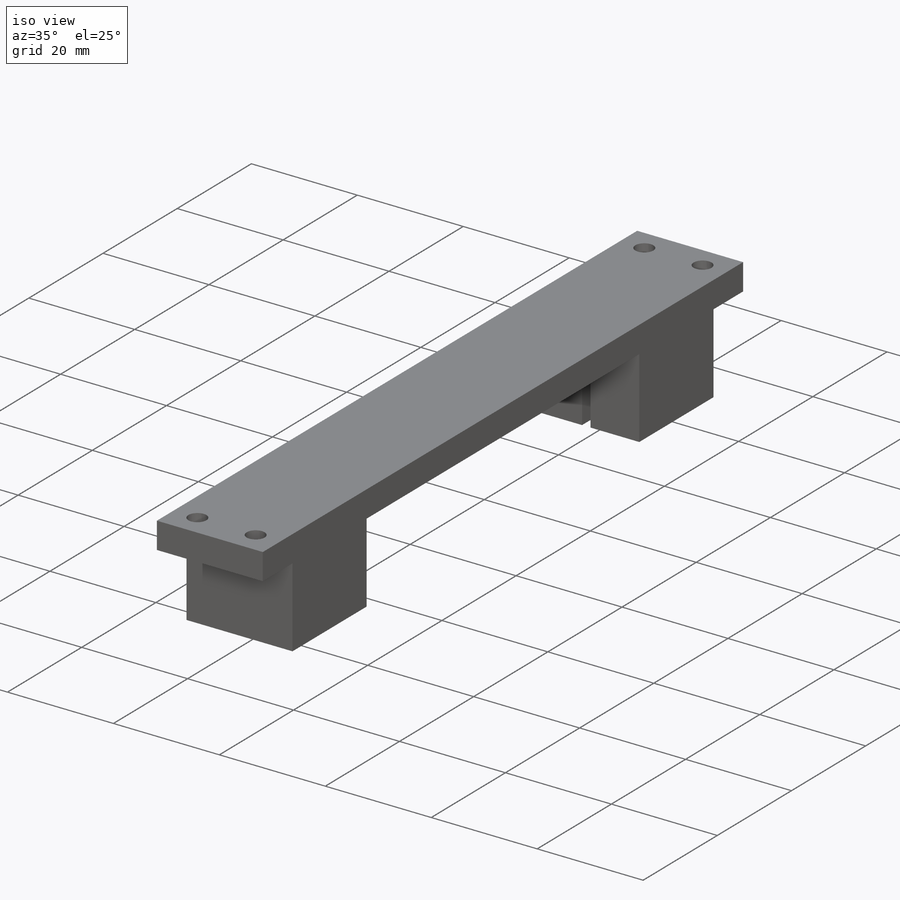
[diagram: iso view]
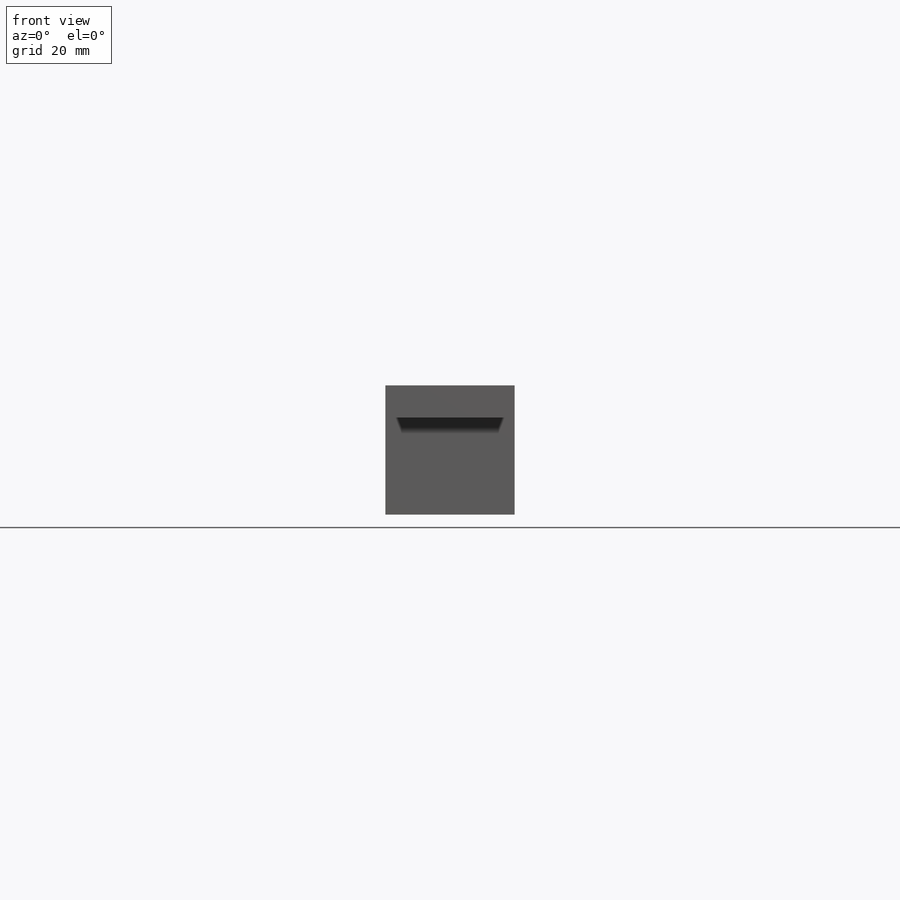
[diagram: front view]
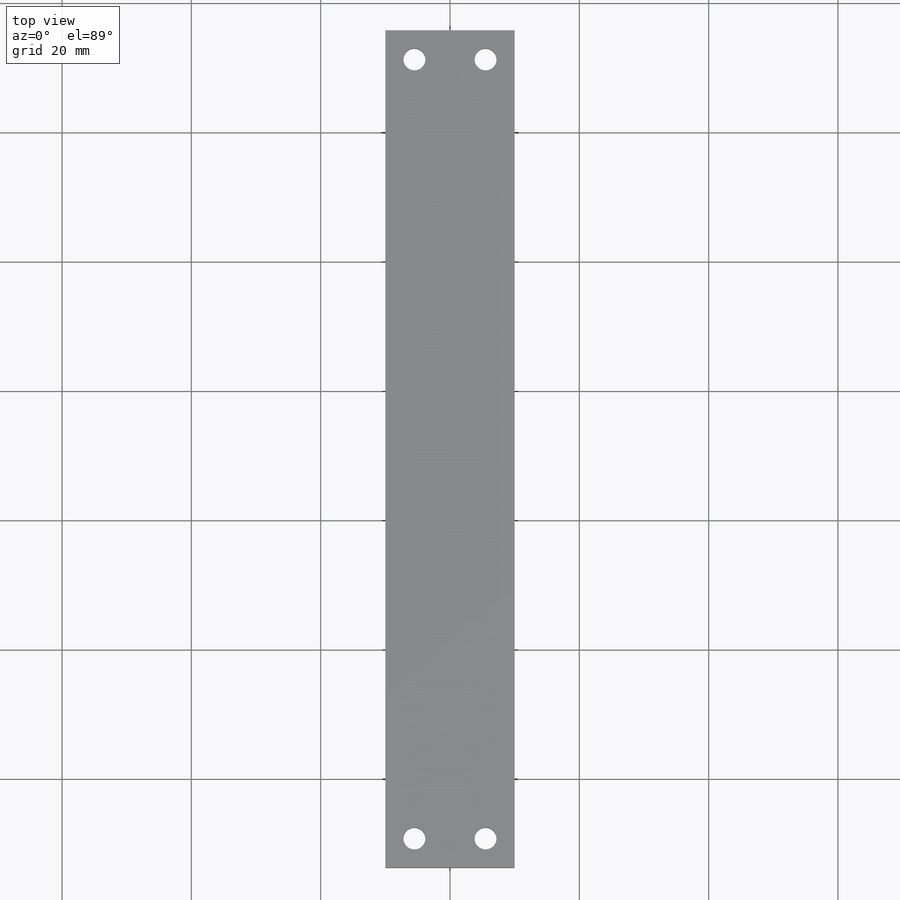
[diagram: top view]
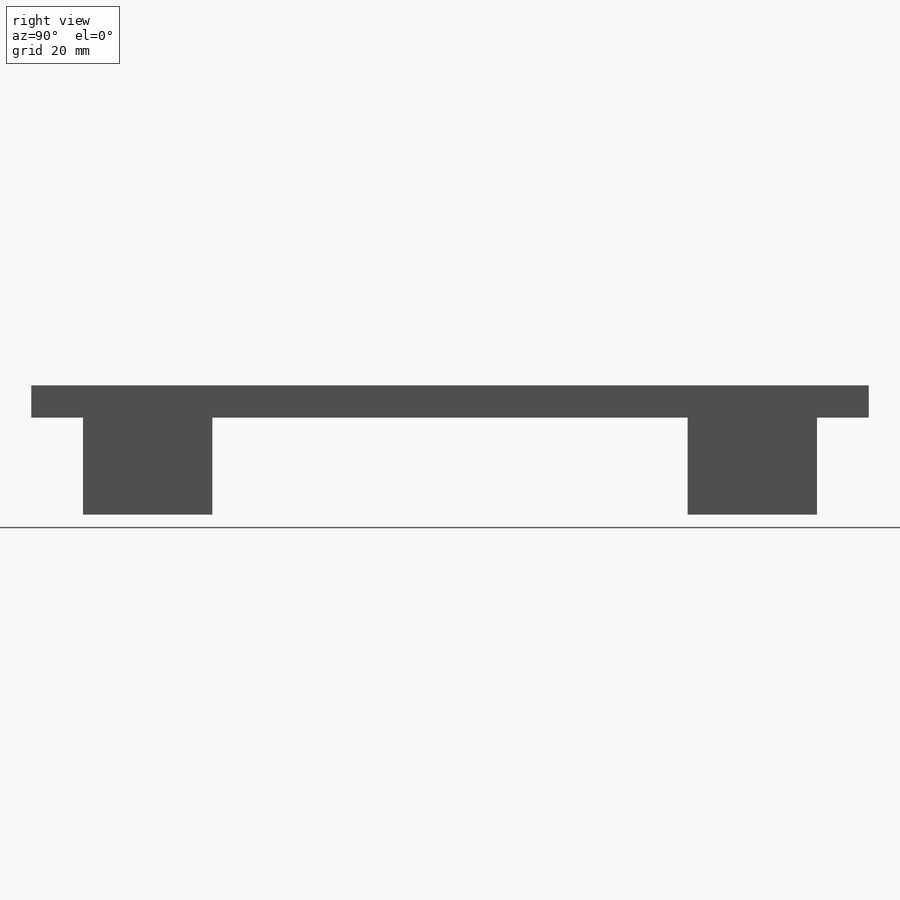
[diagram: right view]
SOLIDWORKS PART (.sldprt)
format: sldprt  version: not decoded by parser v0  size: 536,064 bytes
history: native  units: mm
features: sketch x11, extrude x5, cut_extrude x2, hole x2, material x1 (+12 scaffold rows collapsed)
feature tree (33):
  scaffold x12  (default folders/planes/origin — collapsed)
  material  "Material <not specified>"
  sketch  "Sketch1"  dims[D1=20.0mm D2=28.0mm]
  extrude  "Boss-Extrude1"  Depth=5mm
  sketch  "Sketch2"  dims[D1=20.0mm]
  extrude  "Boss-Extrude2"  Depth=15mm
  sketch  "Sketch3"  dims[D1=1.6mm D2=7.5mm D3=9.2mm]
  cut_extrude  "Cut-Extrude1"  Depth=15mm
  hole  "M3 Clearance Hole1"  Diameter=3.4mm Depth=4.999mm
  sketch  "Sketch5"  dims[D1=3.5mm D2=3.5mm D3=4.5mm D4=4.5mm]
  sketch  "Sketch4"  dims[hole-wizard template sketch: 47 standard entries collapsed; hole parameters kept: c15.Hole Depth=4.999mm c15.D3=~14.816244mm c15.Drill Angle=118.0deg]
  sketch  "Sketch6"
  extrude  "Boss-Extrude3"  Depth=93.5mm
  sketch  "Sketch7"
  extrude  "Boss-Extrude4"  Depth=8mm
  sketch  "Sketch8"  dims[D1=20.0mm D2=8.0mm]
  extrude  "Boss-Extrude5"  Depth=15mm
  sketch  "Sketch9"  dims[c1.D1=4.0mm c1.D2=7.0mm c1.D3=7.0mm c2.D1=7.0mm c2.D2=9.2mm c2.D3=12.0mm c2.D4=20.0mm c3.D1=1.6mm]
  cut_extrude  "Cut-Extrude2"  Depth=15mm
  hole  "M3 Clearance Hole2"  Diameter=3.4mm Depth=5mm
  sketch  "Sketch11"  dims[D1=3.5mm D2=3.5mm D3=4.5mm D4=4.5mm]
  sketch  "Sketch10"  dims[hole-wizard template sketch: 61 standard entries collapsed; hole parameters above]
decode coverage: 18 of 20 modeling features carry decoded parameters
note: ~ marks probable driven/reference dimensions
note: suppression state not decoded; provenance and decode notes live in map.json
